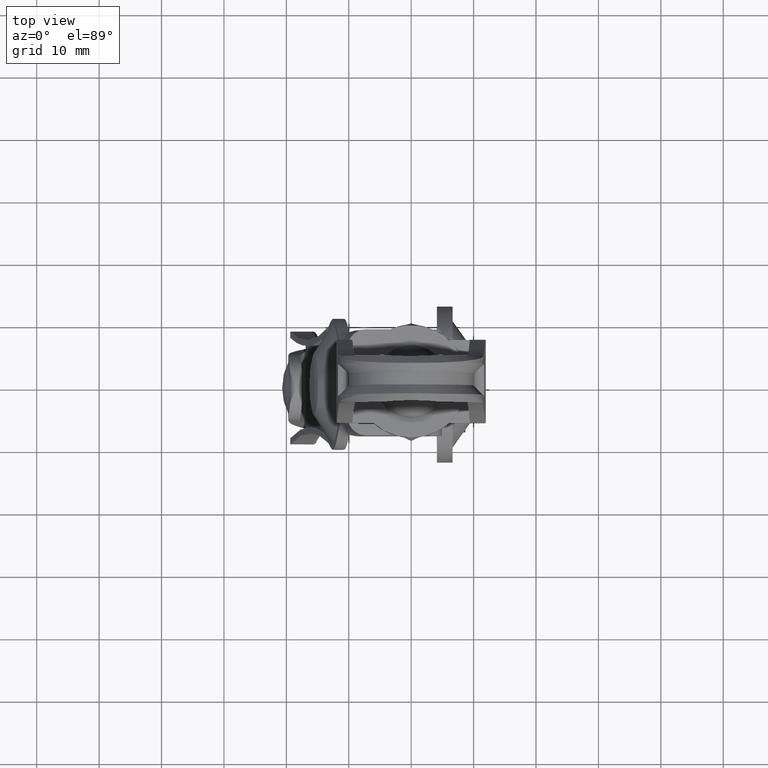
[diagram: clean part render]
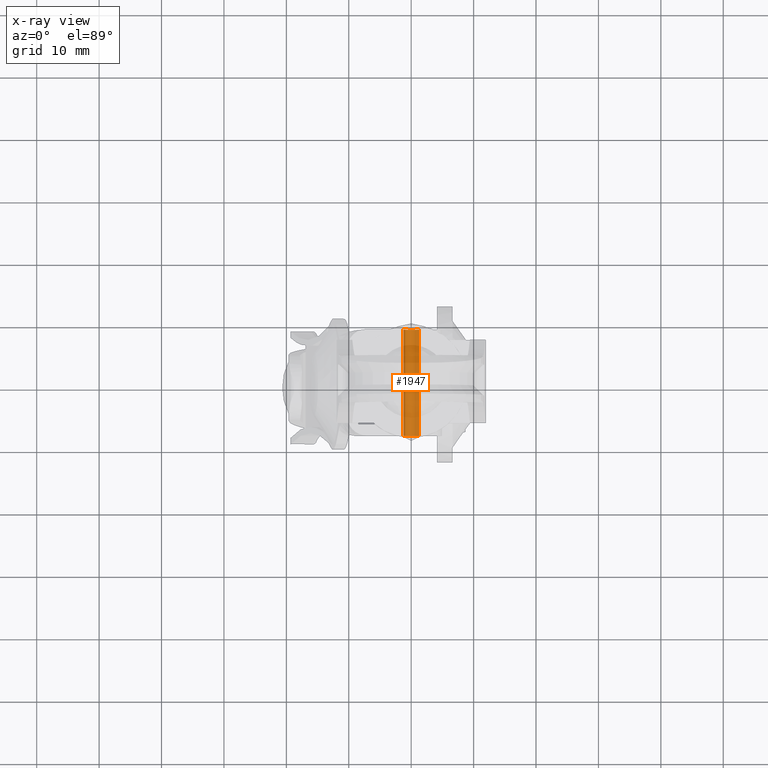
[diagram: x-ray — body ghosted, one internal face saturated and labeled with its STEP entity id]
A machine part, top view, then the same camera in x-ray: the body is ghosted and one INTERNAL B-rep face — a face not visible from any outside direction — is saturated and labeled: STEP entity #1947.
In plain terms, the highlighted face is a freeform B-spline surface patch.
Its self-contained STEP definition (entity closure, byte-faithful):
#1817=CARTESIAN_POINT('',(0.807177547977532,-8.925000050000003,16.237479553675687));
#1818=CARTESIAN_POINT('',(0.834493341046612,-8.925000050000003,16.214378479039500));
#1819=CARTESIAN_POINT('',(0.860443219617192,-8.925000050000001,16.189752963765461));
#1820=CARTESIAN_POINT('',(1.767161183382551,-8.925000050000001,15.329309744148267));
#1821=CARTESIAN_POINT('',(0.906717963765359,-8.925000050000001,14.422591780382909));
#1822=CARTESIAN_POINT('',(0.046274744148167,-8.925000050000001,13.515873816617550));
#1823=CARTESIAN_POINT('',(-0.860443219617192,-8.925000050000001,14.376317036234740));
#1824=CARTESIAN_POINT('',(-1.767161183382551,-8.925000050000001,15.236760255851935));
#1825=CARTESIAN_POINT('',(-0.906717963765359,-8.925000050000001,16.143478219617290));
#1826=CARTESIAN_POINT('',(0.807177547977532,8.935627051250007,16.237479553675687));
#1827=CARTESIAN_POINT('',(0.834493341046612,8.935627051250005,16.214378479039500));
#1828=CARTESIAN_POINT('',(0.860443219617192,8.935627051250005,16.189752963765461));
#1829=CARTESIAN_POINT('',(1.767161183382551,8.935627051250005,15.329309744148267));
#1830=CARTESIAN_POINT('',(0.906717963765359,8.935627051250005,14.422591780382909));
#1831=CARTESIAN_POINT('',(0.046274744148167,8.935627051250005,13.515873816617550));
#1832=CARTESIAN_POINT('',(-0.860443219617192,8.935627051250005,14.376317036234740));
#1833=CARTESIAN_POINT('',(-1.767161183382551,8.935627051250005,15.236760255851935));
#1834=CARTESIAN_POINT('',(-0.906717963765359,8.935627051250005,16.143478219617290));
#1842=(BOUNDED_SURFACE()B_SPLINE_SURFACE(2,1,((#1817,#1826),(#1818,#1827),(#1819,#1828),(#1820,#1829),(#1821,#1830),(#1822,#1831),(#1823,#1832),(#1824,#1833),(#1825,#1834)),.UNSPECIFIED.,.F.,.F.,.U.)B_SPLINE_SURFACE_WITH_KNOTS((3,2,2,2,3),(2,2),(1.507964473723101,1.570796326794897,3.141592653589793,4.712388980384690,6.283185307179586),(0.0,17.860627101250010),.UNSPECIFIED.)GEOMETRIC_REPRESENTATION_ITEM()RATIONAL_B_SPLINE_SURFACE(((0.977505800795127,0.977505800795127),(0.988284271247462,0.988284271247462),(1.0,1.0),(0.707106781186548,0.707106781186548),(1.0,1.0),(0.707106781186548,0.707106781186548),(1.0,1.0),(0.707106781186548,0.707106781186548),(1.0,1.0)))REPRESENTATION_ITEM('')SURFACE());
#1843=CARTESIAN_POINT('',(0.807177983300907,8.500002000000308,16.237479245971119));
#1844=VERTEX_POINT('',#1843);
#1845=CARTESIAN_POINT('',(1.249999999999986,8.500002000000000,15.283035187227890));
#1846=VERTEX_POINT('',#1845);
#1847=CARTESIAN_POINT('',(0.807177983300907,8.500002000000308,16.237479245971119));
#1848=CARTESIAN_POINT('',(0.980438705737875,8.500002000000261,16.091742560985900));
#1849=CARTESIAN_POINT('',(1.190641202786032,8.500002000000169,15.780874622268900));
#1850=CARTESIAN_POINT('',(1.250019001889766,8.500002000000048,15.418765828814809));
#1851=CARTESIAN_POINT('',(1.249999999999986,8.500002000000000,15.283035187227890));
#1852=B_SPLINE_CURVE_WITH_KNOTS('',3,(#1847,#1848,#1849,#1850,#1851),.UNSPECIFIED.,.F.,.U.,(4,1,4),(0.000000145854248,0.678758078353889,1.086034675483710),.UNSPECIFIED.);
#1853=EDGE_CURVE('',#1844,#1846,#1852,.T.);
#1854=ORIENTED_EDGE('',*,*,#1853,.F.);
#1855=CARTESIAN_POINT('',(0.807177978292278,-8.500000000000000,16.237479250206949));
#1856=VERTEX_POINT('',#1855);
#1857=CARTESIAN_POINT('',(0.807177978292278,-8.500000000000000,16.237479250206949));
#1858=CARTESIAN_POINT('',(0.807177983300907,8.500002000000308,16.237479245971119));
#1859=QUASI_UNIFORM_CURVE('',1,(#1857,#1858),.UNSPECIFIED.,.F.,.U.);
#1860=EDGE_CURVE('',#1856,#1844,#1859,.T.);
#1861=ORIENTED_EDGE('',*,*,#1860,.F.);
#1862=CARTESIAN_POINT('',(1.249999999999986,-8.500000000000000,15.283035187227890));
#1863=VERTEX_POINT('',#1862);
#1864=CARTESIAN_POINT('',(0.807177978292278,-8.500000000000000,16.237479250206949));
#1865=CARTESIAN_POINT('',(0.936891112565528,-8.499999999999982,16.128018187912929));
#1866=CARTESIAN_POINT('',(1.164673739938776,-8.500000000000027,15.837053996473850));
#1867=CARTESIAN_POINT('',(1.250344128896337,-8.499999999999996,15.475395602971540));
#1868=CARTESIAN_POINT('',(1.249999999999986,-8.500000000000000,15.283035187227890));
#1869=B_SPLINE_CURVE_WITH_KNOTS('',3,(#1864,#1865,#1866,#1867,#1868),.UNSPECIFIED.,.F.,.U.,(4,1,4),(0.000000145853919,0.509109271129505,1.086034682043931),.UNSPECIFIED.);
#1870=EDGE_CURVE('',#1856,#1863,#1869,.T.);
#1871=ORIENTED_EDGE('',*,*,#1870,.T.);
#1872=CARTESIAN_POINT('',(0.0,-8.500000000000000,14.033035000000099));
#1873=VERTEX_POINT('',#1872);
#1874=CARTESIAN_POINT('',(1.249999999999986,-8.500000000000000,15.283035187227890));
#1875=CARTESIAN_POINT('',(1.250607665906227,-8.500000000000000,15.057930958445750));
#1876=CARTESIAN_POINT('',(1.142153385422772,-8.500000000000005,14.669952540216020));
#1877=CARTESIAN_POINT('',(0.820015953751452,-8.499999999999995,14.314746047466841));
#1878=CARTESIAN_POINT('',(0.449762626811343,-8.500000000000018,14.092890362253510));
#1879=CARTESIAN_POINT('',(0.184148772197207,-8.499999999999989,14.032728902827071));
#1880=CARTESIAN_POINT('',(0.0,-8.500000000000000,14.033035000000099));
#1881=B_SPLINE_CURVE_WITH_KNOTS('',3,(#1874,#1875,#1876,#1877,#1878,#1879,#1880),.UNSPECIFIED.,.F.,.U.,(4,1,1,1,4),(0.000000382237739,0.675047281121148,1.165913788943216,1.411392784712049,1.963692459669723),.UNSPECIFIED.);
#1882=EDGE_CURVE('',#1863,#1873,#1881,.T.);
#1883=ORIENTED_EDGE('',*,*,#1882,.T.);
#1884=CARTESIAN_POINT('',(-1.249999999999986,-8.499999999999998,15.283034812772319));
#1885=VERTEX_POINT('',#1884);
#1886=CARTESIAN_POINT('',(0.0,-8.500000000000000,14.033035000000099));
#1887=CARTESIAN_POINT('',(-0.184132063614849,-8.500000000000011,14.032746774610620));
#1888=CARTESIAN_POINT('',(-0.531583023792804,-8.499999999999996,14.111271934921790));
#1889=CARTESIAN_POINT('',(-0.916785716712109,-8.499999999999981,14.396869939657289));
#1890=CARTESIAN_POINT('',(-1.180909938594718,-8.500000000000043,14.792385848424940));
#1891=CARTESIAN_POINT('',(-1.250303331619803,-8.499999999999979,15.098894713796430));
#1892=CARTESIAN_POINT('',(-1.249999999999986,-8.499999999999998,15.283034812772319));
#1893=B_SPLINE_CURVE_WITH_KNOTS('',3,(#1886,#1887,#1888,#1889,#1890,#1891,#1892),.UNSPECIFIED.,.F.,.U.,(4,1,1,1,4),(0.000000383228026,0.552299998883866,1.043199182555527,1.411392632720475,1.963692248599797),.UNSPECIFIED.);
#1894=EDGE_CURVE('',#1873,#1885,#1893,.T.);
#1895=ORIENTED_EDGE('',*,*,#1894,.T.);
#1896=CARTESIAN_POINT('',(-0.906717763866618,-8.499999999999998,16.143478362361421));
#1897=VERTEX_POINT('',#1896);
#1898=CARTESIAN_POINT('',(-1.249999999999986,-8.499999999999998,15.283034812772319));
#1899=CARTESIAN_POINT('',(-1.250265858536415,-8.500000000000002,15.461023835430380));
#1900=CARTESIAN_POINT('',(-1.181204659279196,-8.499999999999986,15.777103062839450));
#1901=CARTESIAN_POINT('',(-1.002050911852774,-8.500000000000009,16.043133174124151));
#1902=CARTESIAN_POINT('',(-0.906717763866618,-8.499999999999998,16.143478362361421));
#1903=B_SPLINE_CURVE_WITH_KNOTS('',3,(#1898,#1899,#1900,#1901,#1902),.UNSPECIFIED.,.F.,.U.,(4,1,4),(0.000000179421385,0.533860339762087,0.949112140942066),.UNSPECIFIED.);
#1904=EDGE_CURVE('',#1885,#1897,#1903,.T.);
#1905=ORIENTED_EDGE('',*,*,#1904,.T.);
#1906=CARTESIAN_POINT('',(-0.906717761801863,8.500001999999903,16.143478364537220));
#1907=VERTEX_POINT('',#1906);
#1908=CARTESIAN_POINT('',(-0.906717763866618,-8.499999999999998,16.143478362361421));
#1909=CARTESIAN_POINT('',(-0.906717761801863,8.500001999999903,16.143478364537220));
#1910=QUASI_UNIFORM_CURVE('',1,(#1908,#1909),.UNSPECIFIED.,.F.,.U.);
#1911=EDGE_CURVE('',#1897,#1907,#1910,.T.);
#1912=ORIENTED_EDGE('',*,*,#1911,.T.);
#1913=CARTESIAN_POINT('',(-1.249999999999986,8.500002000000000,15.283034812772319));
#1914=VERTEX_POINT('',#1913);
#1915=CARTESIAN_POINT('',(-1.249999999999986,8.500002000000000,15.283034812772319));
#1916=CARTESIAN_POINT('',(-1.250078603781868,8.500001999999986,15.421445407841579));
#1917=CARTESIAN_POINT('',(-1.196914157417610,8.500001999999961,15.737735007886799));
#1918=CARTESIAN_POINT('',(-1.029422772267091,8.500001999999913,16.014553194570190));
#1919=CARTESIAN_POINT('',(-0.906717761801863,8.500001999999903,16.143478364537220));
#1920=B_SPLINE_CURVE_WITH_KNOTS('',3,(#1915,#1916,#1917,#1918,#1919),.UNSPECIFIED.,.F.,.U.,(4,1,4),(0.000000179421614,0.415251981918404,0.949112143942458),.UNSPECIFIED.);
#1921=EDGE_CURVE('',#1914,#1907,#1920,.T.);
#1922=ORIENTED_EDGE('',*,*,#1921,.F.);
#1923=CARTESIAN_POINT('',(0.0,8.500002000000000,14.033035000000099));
#1924=VERTEX_POINT('',#1923);
#1925=CARTESIAN_POINT('',(0.0,8.500002000000000,14.033035000000099));
#1926=CARTESIAN_POINT('',(-0.184132063614849,8.500002000000015,14.032746774610620));
#1927=CARTESIAN_POINT('',(-0.531583023792804,8.500001999999990,14.111271934921790));
#1928=CARTESIAN_POINT('',(-0.916785716712109,8.500001999999990,14.396869939657289));
#1929=CARTESIAN_POINT('',(-1.180909938594718,8.500002000000031,14.792385848424940));
#1930=CARTESIAN_POINT('',(-1.250303331619802,8.500001999999988,15.098894713796430));
#1931=CARTESIAN_POINT('',(-1.249999999999986,8.500002000000000,15.283034812772319));
#1932=B_SPLINE_CURVE_WITH_KNOTS('',3,(#1925,#1926,#1927,#1928,#1929,#1930,#1931),.UNSPECIFIED.,.F.,.U.,(4,1,1,1,4),(0.000000383228026,0.552299998883866,1.043199182555527,1.411392632720475,1.963692248599797),.UNSPECIFIED.);
#1933=EDGE_CURVE('',#1924,#1914,#1932,.T.);
#1934=ORIENTED_EDGE('',*,*,#1933,.F.);
#1935=CARTESIAN_POINT('',(1.249999999999986,8.500002000000000,15.283035187227890));
#1936=CARTESIAN_POINT('',(1.250607665906227,8.500002000000007,15.057930958445750));
#1937=CARTESIAN_POINT('',(1.142153385422772,8.500001999999999,14.669952540216020));
#1938=CARTESIAN_POINT('',(0.820015953751452,8.500001999999999,14.314746047466841));
#1939=CARTESIAN_POINT('',(0.449762626811343,8.500002000000011,14.092890362253510));
#1940=CARTESIAN_POINT('',(0.184148772197207,8.500001999999981,14.032728902827071));
#1941=CARTESIAN_POINT('',(0.0,8.500002000000000,14.033035000000099));
#1942=B_SPLINE_CURVE_WITH_KNOTS('',3,(#1935,#1936,#1937,#1938,#1939,#1940,#1941),.UNSPECIFIED.,.F.,.U.,(4,1,1,1,4),(0.000000382237739,0.675047281121148,1.165913788943216,1.411392784712049,1.963692459669723),.UNSPECIFIED.);
#1943=EDGE_CURVE('',#1846,#1924,#1942,.T.);
#1944=ORIENTED_EDGE('',*,*,#1943,.F.);
#1945=EDGE_LOOP('',(#1854,#1861,#1871,#1883,#1895,#1905,#1912,#1922,#1934,#1944));
#1946=FACE_OUTER_BOUND('',#1945,.T.);
#1947=ADVANCED_FACE('',(#1946),#1842,.T.);